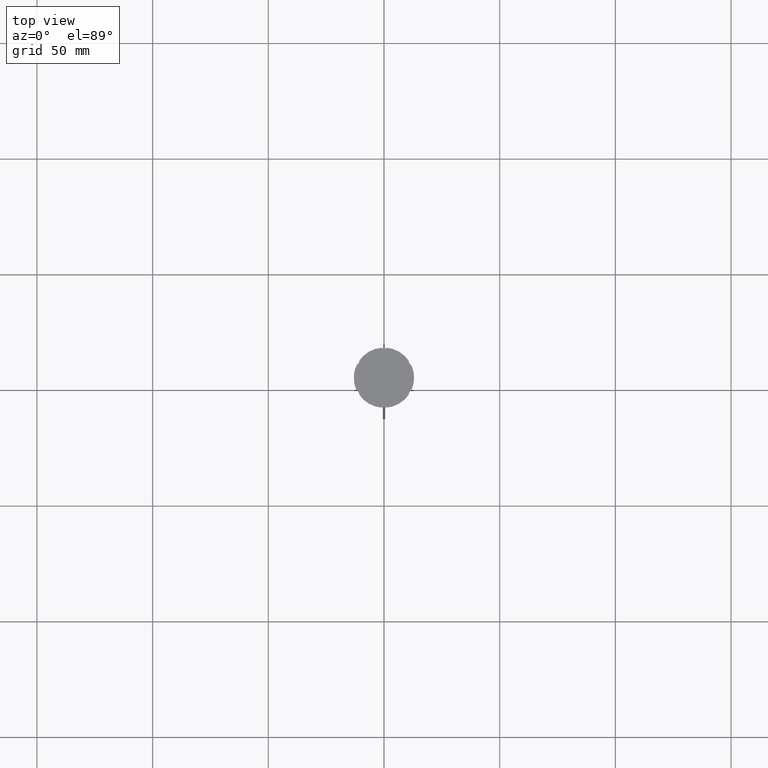
[diagram: clean part render]
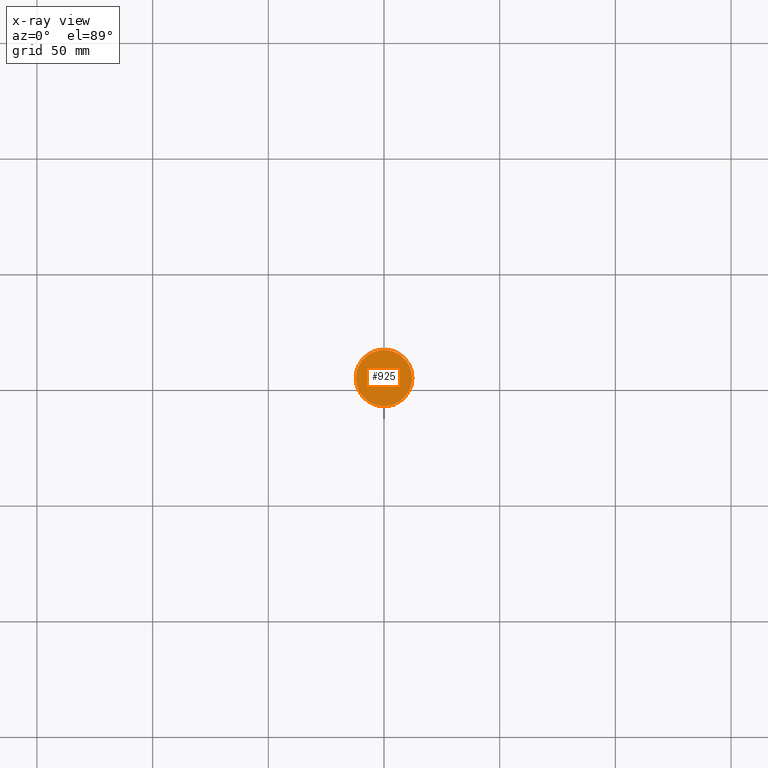
[diagram: x-ray — body ghosted, one internal face saturated and labeled with its STEP entity id]
A machine part, top view, then the same camera in x-ray: the body is ghosted and one INTERNAL B-rep face — a face not visible from any outside direction — is saturated and labeled: STEP entity #925.
In plain terms, the highlighted planar face has unit normal (0, 0, -1).
Its self-contained STEP definition (entity closure, byte-faithful):
#20 = CARTESIAN_POINT ( 'NONE',  ( 0.000000000000000000, 0.000000000000000000, -12.00000000000000000 ) ) ;
#127 = EDGE_LOOP ( 'NONE', ( #2833, #1644 ) ) ;
#453 = CARTESIAN_POINT ( 'NONE',  ( 0.000000000000000000, 0.000000000000000000, -12.00000000000000000 ) ) ;
#615 = CARTESIAN_POINT ( 'NONE',  ( 0.000000000000000000, 0.000000000000000000, -12.00000000000000000 ) ) ;
#739 = EDGE_CURVE ( 'NONE', #2220, #783, #1873, .T. ) ;
#754 = CIRCLE ( 'NONE', #2376, 12.20000000000000639 ) ;
#783 = VERTEX_POINT ( 'NONE', #864 ) ;
#804 = AXIS2_PLACEMENT_3D ( 'NONE', #615, #1298, #2166 ) ;
#864 = CARTESIAN_POINT ( 'NONE',  ( -12.20000000000000639, 0.000000000000000000, -12.00000000000000000 ) ) ;
#913 = DIRECTION ( 'NONE',  ( -0.000000000000000000, -0.000000000000000000, 1.000000000000000000 ) ) ;
#925 = ADVANCED_FACE ( 'NONE', ( #2237 ), #2046, .F. ) ;
#1201 = DIRECTION ( 'NONE',  ( -1.000000000000000000, 0.000000000000000000, 0.000000000000000000 ) ) ;
#1280 = EDGE_CURVE ( 'NONE', #783, #2220, #754, .T. ) ;
#1298 = DIRECTION ( 'NONE',  ( -0.000000000000000000, -0.000000000000000000, 1.000000000000000000 ) ) ;
#1330 = DIRECTION ( 'NONE',  ( 0.000000000000000000, 0.000000000000000000, -1.000000000000000000 ) ) ;
#1615 = CARTESIAN_POINT ( 'NONE',  ( 12.20000000000000639, 1.512438796946981880E-15, -12.00000000000000000 ) ) ;
#1644 = ORIENTED_EDGE ( 'NONE', *, *, #739, .T. ) ;
#1873 = CIRCLE ( 'NONE', #804, 12.20000000000000639 ) ;
#2046 = PLANE ( 'NONE',  #2480 ) ;
#2166 = DIRECTION ( 'NONE',  ( -1.000000000000000000, 0.000000000000000000, 0.000000000000000000 ) ) ;
#2220 = VERTEX_POINT ( 'NONE', #1615 ) ;
#2237 = FACE_OUTER_BOUND ( 'NONE', #127, .T. ) ;
#2376 = AXIS2_PLACEMENT_3D ( 'NONE', #20, #913, #1201 ) ;
#2480 = AXIS2_PLACEMENT_3D ( 'NONE', #453, #1330, #2724 ) ;
#2724 = DIRECTION ( 'NONE',  ( -1.000000000000000000, 0.000000000000000000, -0.000000000000000000 ) ) ;
#2833 = ORIENTED_EDGE ( 'NONE', *, *, #1280, .T. ) ;